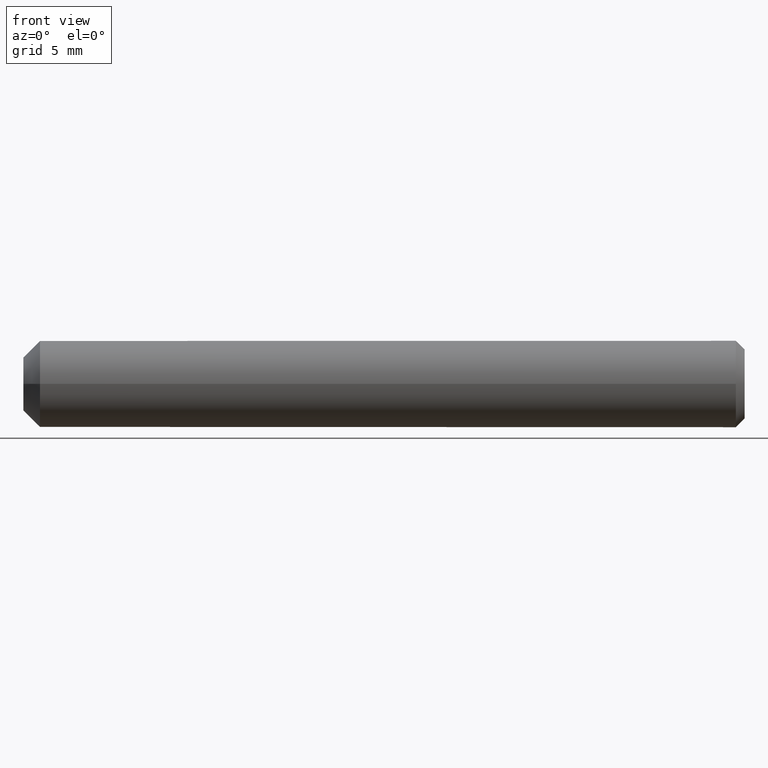
[diagram: clean part render]
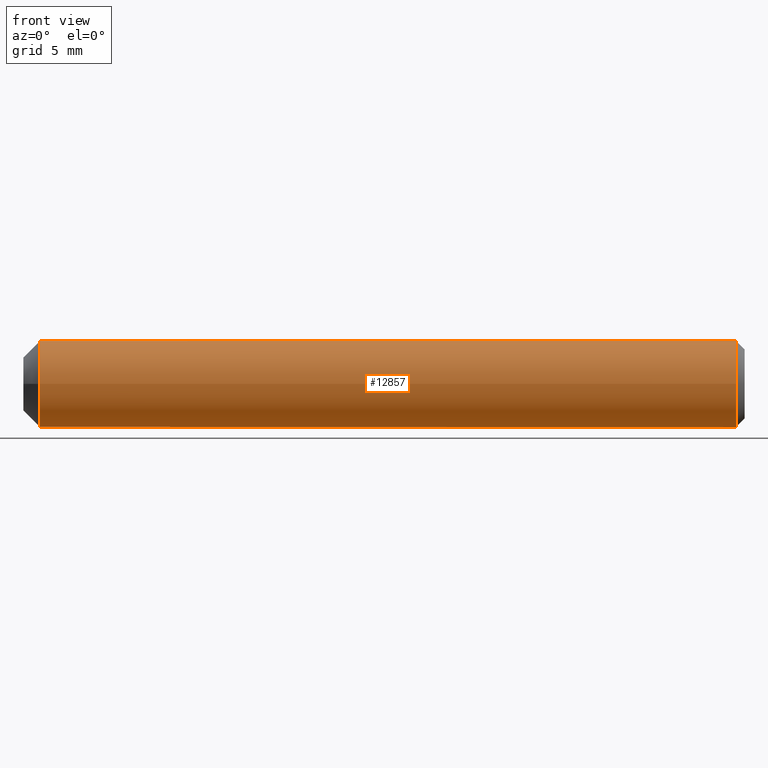
[diagram: same view with one face highlighted and labeled with its STEP entity id]
A machine part, front view. The second image highlights one B-rep face of the part: STEP entity #12857.
In plain terms, the highlighted cylindrical surface (bore or boss wall) has radius 3 mm, axis along (-1, -0, -0).
Its self-contained STEP definition (entity closure, byte-faithful):
#87 = FACE_OUTER_BOUND ( 'NONE', #9258, .T. ) ;
#551 = CARTESIAN_POINT ( 'NONE',  ( 50.00000000000000000, 0.0000000000000000000, 0.0000000000000000000 ) ) ;
#894 = VERTEX_POINT ( 'NONE', #14333 ) ;
#907 = CARTESIAN_POINT ( 'NONE',  ( 1.149999999999991000, -4.538988261647290200E-017, 0.0000000000000000000 ) ) ;
#968 = DIRECTION ( 'NONE',  ( -7.228014483236694600E-017, -1.000000000000000000, 0.0000000000000000000 ) ) ;
#2898 = VERTEX_POINT ( 'NONE', #11207 ) ;
#3307 = AXIS2_PLACEMENT_3D ( 'NONE', #551, #7791, #16185 ) ;
#3410 = ORIENTED_EDGE ( 'NONE', *, *, #15869, .T. ) ;
#5959 = ORIENTED_EDGE ( 'NONE', *, *, #9900, .F. ) ;
#6324 = AXIS2_PLACEMENT_3D ( 'NONE', #907, #9588, #968 ) ;
#7232 = CIRCLE ( 'NONE', #6324, 3.000000000000000400 ) ;
#7791 = DIRECTION ( 'NONE',  ( -1.000000000000000000, -0.0000000000000000000, -0.0000000000000000000 ) ) ;
#9258 = EDGE_LOOP ( 'NONE', ( #5959 ) ) ;
#9588 = DIRECTION ( 'NONE',  ( -1.000000000000000000, 3.946946314475935200E-017, -0.0000000000000000000 ) ) ;
#9688 = DIRECTION ( 'NONE',  ( -1.000000000000000000, 0.0000000000000000000, 0.0000000000000000000 ) ) ;
#9752 = CARTESIAN_POINT ( 'NONE',  ( 49.39999999999999900, 0.0000000000000000000, 0.0000000000000000000 ) ) ;
#9877 = DIRECTION ( 'NONE',  ( 0.0000000000000000000, 0.0000000000000000000, -1.000000000000000000 ) ) ;
#9900 = EDGE_CURVE ( 'NONE', #894, #894, #7232, .T. ) ;
#10693 = CYLINDRICAL_SURFACE ( 'NONE', #3307, 3.000000000000000400 ) ;
#11207 = CARTESIAN_POINT ( 'NONE',  ( 49.39999999999999900, 0.0000000000000000000, -3.000000000000000400 ) ) ;
#12799 = EDGE_LOOP ( 'NONE', ( #3410 ) ) ;
#12857 = ADVANCED_FACE ( 'NONE', ( #14931, #87 ), #10693, .T. ) ;
#13748 = CIRCLE ( 'NONE', #16067, 3.000000000000000400 ) ;
#14333 = CARTESIAN_POINT ( 'NONE',  ( 1.149999999999990800, -3.000000000000000400, 0.0000000000000000000 ) ) ;
#14931 = FACE_OUTER_BOUND ( 'NONE', #12799, .T. ) ;
#15869 = EDGE_CURVE ( 'NONE', #2898, #2898, #13748, .T. ) ;
#16067 = AXIS2_PLACEMENT_3D ( 'NONE', #9752, #9688, #9877 ) ;
#16185 = DIRECTION ( 'NONE',  ( 0.0000000000000000000, 0.0000000000000000000, 1.000000000000000000 ) ) ;